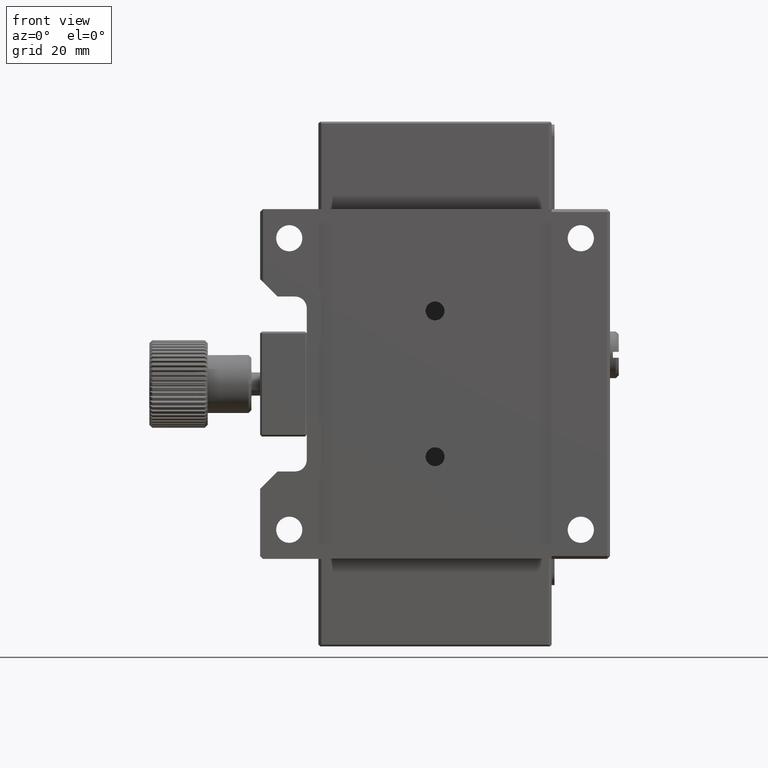
[diagram: clean part render]
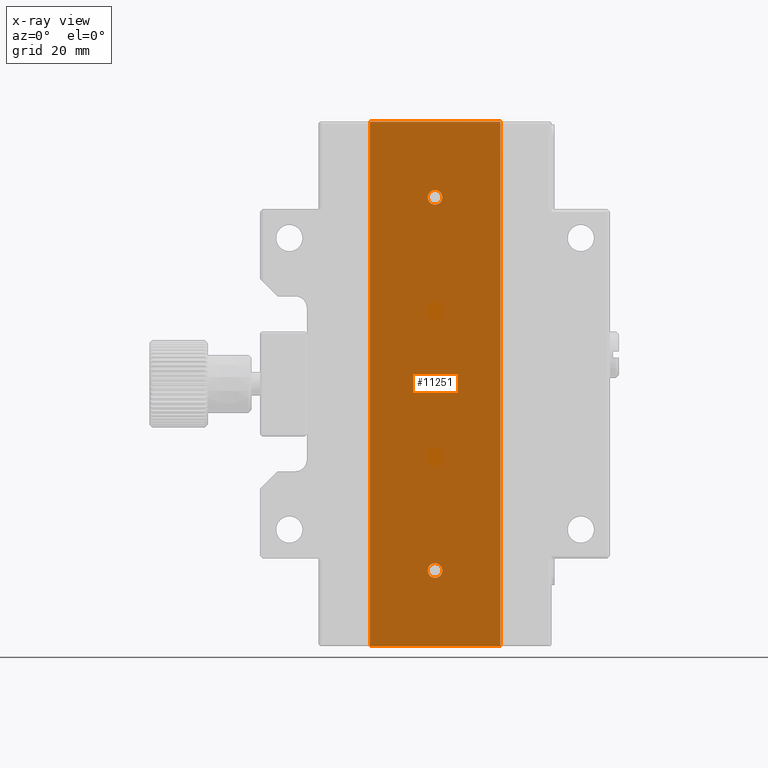
[diagram: x-ray — body ghosted, one internal face saturated and labeled with its STEP entity id]
A machine part, front view, then the same camera in x-ray: the body is ghosted and one INTERNAL B-rep face — a face not visible from any outside direction — is saturated and labeled: STEP entity #11251.
In plain terms, the highlighted planar face has unit normal (-0, 1, 0).
Its self-contained STEP definition (entity closure, byte-faithful):
#105 = LINE ( 'NONE', #2666, #8431 ) ;
#326 = CARTESIAN_POINT ( 'NONE',  ( 0.000000000000000000, 18.99999999999500133, -1.249999999970441422 ) ) ;
#427 = DIRECTION ( 'NONE',  ( 0.000000000000000000, 0.000000000000000000, -1.000000000000000000 ) ) ;
#442 = ORIENTED_EDGE ( 'NONE', *, *, #7856, .F. ) ;
#1281 = EDGE_CURVE ( 'NONE', #13792, #13792, #5517, .T. ) ;
#1624 = CARTESIAN_POINT ( 'NONE',  ( 0.000000000000000000, 18.99999999999500133, 32.00000000000000000 ) ) ;
#1827 = ORIENTED_EDGE ( 'NONE', *, *, #3598, .F. ) ;
#1897 = DIRECTION ( 'NONE',  ( 0.000000000000000000, -1.000000000000000000, 0.000000000000000000 ) ) ;
#2010 = CARTESIAN_POINT ( 'NONE',  ( 11.20000000000010054, 19.00000000000007816, 45.00000000000000000 ) ) ;
#2496 = DIRECTION ( 'NONE',  ( -1.000000000000000000, -1.393974221767080059E-14, 0.000000000000000000 ) ) ;
#2578 = DIRECTION ( 'NONE',  ( -1.393974221767080059E-14, 1.000000000000000000, 0.000000000000000000 ) ) ;
#2666 = CARTESIAN_POINT ( 'NONE',  ( 0.000000000000000000, 18.99999999999984368, 45.00000000000000000 ) ) ;
#2721 = LINE ( 'NONE', #7734, #13127 ) ;
#2795 = EDGE_CURVE ( 'NONE', #15423, #16074, #7418, .T. ) ;
#3216 = CARTESIAN_POINT ( 'NONE',  ( 0.000000000000000000, 18.99999999999500133, 30.75000000001182343 ) ) ;
#3598 = EDGE_CURVE ( 'NONE', #11221, #13915, #105, .T. ) ;
#3628 = EDGE_LOOP ( 'NONE', ( #9125 ) ) ;
#4055 = EDGE_CURVE ( 'NONE', #16074, #13915, #2721, .T. ) ;
#4408 = ORIENTED_EDGE ( 'NONE', *, *, #5175, .F. ) ;
#4420 = DIRECTION ( 'NONE',  ( 0.000000000000000000, 0.000000000000000000, -1.000000000000000000 ) ) ;
#5040 = DIRECTION ( 'NONE',  ( 1.000000000000000000, 0.000000000000000000, -0.000000000000000000 ) ) ;
#5134 = PLANE ( 'NONE',  #7867 ) ;
#5175 = EDGE_CURVE ( 'NONE', #8056, #8056, #7001, .T. ) ;
#5383 = CARTESIAN_POINT ( 'NONE',  ( -11.19999999999986251, 18.99999999999984368, 45.00000000000000000 ) ) ;
#5517 = CIRCLE ( 'NONE', #14661, 1.249999999970441422 ) ;
#6346 = CARTESIAN_POINT ( 'NONE',  ( 0.000000000000000000, 18.99999999999984368, -45.00000000000000000 ) ) ;
#6527 = FACE_BOUND ( 'NONE', #3628, .T. ) ;
#6619 = FACE_OUTER_BOUND ( 'NONE', #8073, .T. ) ;
#6643 = CARTESIAN_POINT ( 'NONE',  ( 0.000000000000000000, 18.99999999999500133, -33.25000000006639311 ) ) ;
#7001 = CIRCLE ( 'NONE', #11434, 1.249999999988177235 ) ;
#7122 = CARTESIAN_POINT ( 'NONE',  ( -11.19999999999986251, 18.99999999999984368, -45.00000000000000000 ) ) ;
#7418 = LINE ( 'NONE', #6346, #15115 ) ;
#7734 = CARTESIAN_POINT ( 'NONE',  ( 11.20000000000010054, 19.00000000000016342, 45.00000000000000000 ) ) ;
#7856 = EDGE_CURVE ( 'NONE', #15423, #11221, #15965, .T. ) ;
#7867 = AXIS2_PLACEMENT_3D ( 'NONE', #15130, #2578, #2496 ) ;
#8028 = VERTEX_POINT ( 'NONE', #6643 ) ;
#8056 = VERTEX_POINT ( 'NONE', #3216 ) ;
#8073 = EDGE_LOOP ( 'NONE', ( #11640, #1827, #442, #12169 ) ) ;
#8431 = VECTOR ( 'NONE', #14056, 1000.000000000000000 ) ;
#9125 = ORIENTED_EDGE ( 'NONE', *, *, #1281, .F. ) ;
#9441 = EDGE_LOOP ( 'NONE', ( #4408 ) ) ;
#11113 = CARTESIAN_POINT ( 'NONE',  ( -11.19999999999989981, 18.99999999999984368, 45.00000000000000000 ) ) ;
#11221 = VERTEX_POINT ( 'NONE', #5383 ) ;
#11251 = ADVANCED_FACE ( 'NONE', ( #6619, #15049, #15293, #6527 ), #5134, .F. ) ;
#11434 = AXIS2_PLACEMENT_3D ( 'NONE', #1624, #14179, #4420 ) ;
#11640 = ORIENTED_EDGE ( 'NONE', *, *, #4055, .T. ) ;
#11757 = CARTESIAN_POINT ( 'NONE',  ( 0.000000000000000000, 18.99999999999500133, -32.00000000000000000 ) ) ;
#11929 = ORIENTED_EDGE ( 'NONE', *, *, #13018, .F. ) ;
#12169 = ORIENTED_EDGE ( 'NONE', *, *, #2795, .T. ) ;
#12307 = AXIS2_PLACEMENT_3D ( 'NONE', #11757, #15606, #427 ) ;
#12729 = DIRECTION ( 'NONE',  ( 0.000000000000000000, -0.000000000000000000, 1.000000000000000000 ) ) ;
#12825 = EDGE_LOOP ( 'NONE', ( #11929 ) ) ;
#13018 = EDGE_CURVE ( 'NONE', #8028, #8028, #14654, .T. ) ;
#13127 = VECTOR ( 'NONE', #12729, 1000.000000000000000 ) ;
#13216 = CARTESIAN_POINT ( 'NONE',  ( 0.000000000000000000, 18.99999999999500133, 0.000000000000000000 ) ) ;
#13498 = DIRECTION ( 'NONE',  ( 0.000000000000000000, 0.000000000000000000, 1.000000000000000000 ) ) ;
#13792 = VERTEX_POINT ( 'NONE', #326 ) ;
#13915 = VERTEX_POINT ( 'NONE', #2010 ) ;
#14056 = DIRECTION ( 'NONE',  ( 1.000000000000000000, 0.000000000000000000, -0.000000000000000000 ) ) ;
#14179 = DIRECTION ( 'NONE',  ( 0.000000000000000000, -1.000000000000000000, 0.000000000000000000 ) ) ;
#14654 = CIRCLE ( 'NONE', #12307, 1.250000000066392447 ) ;
#14661 = AXIS2_PLACEMENT_3D ( 'NONE', #13216, #1897, #15587 ) ;
#15049 = FACE_BOUND ( 'NONE', #9441, .T. ) ;
#15115 = VECTOR ( 'NONE', #5040, 1000.000000000000000 ) ;
#15130 = CARTESIAN_POINT ( 'NONE',  ( -11.19999999999989981, 18.99999999999984368, 45.00000000000000000 ) ) ;
#15182 = VECTOR ( 'NONE', #13498, 1000.000000000000000 ) ;
#15293 = FACE_BOUND ( 'NONE', #12825, .T. ) ;
#15423 = VERTEX_POINT ( 'NONE', #7122 ) ;
#15528 = CARTESIAN_POINT ( 'NONE',  ( 11.20000000000010054, 19.00000000000007816, -45.00000000000000000 ) ) ;
#15587 = DIRECTION ( 'NONE',  ( 0.000000000000000000, 0.000000000000000000, -1.000000000000000000 ) ) ;
#15606 = DIRECTION ( 'NONE',  ( 0.000000000000000000, -1.000000000000000000, 0.000000000000000000 ) ) ;
#15965 = LINE ( 'NONE', #11113, #15182 ) ;
#16074 = VERTEX_POINT ( 'NONE', #15528 ) ;